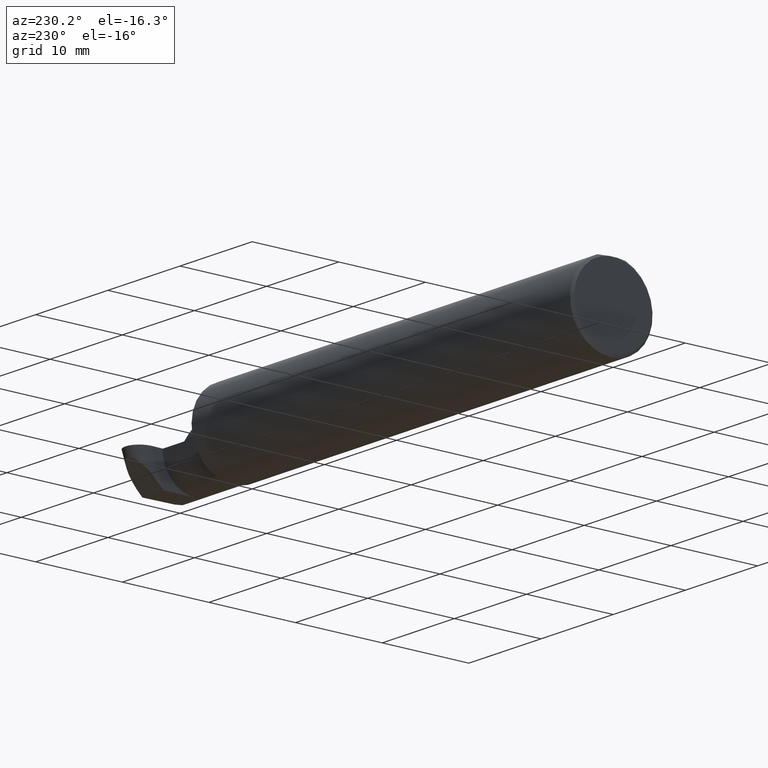
[diagram: clean part render]
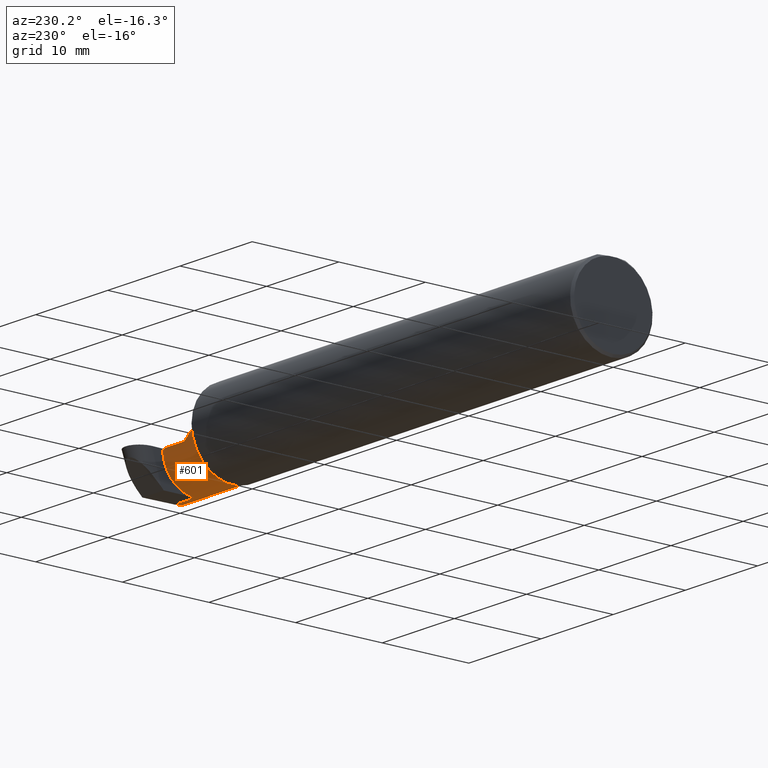
[diagram: same view with one face highlighted and labeled with its STEP entity id]
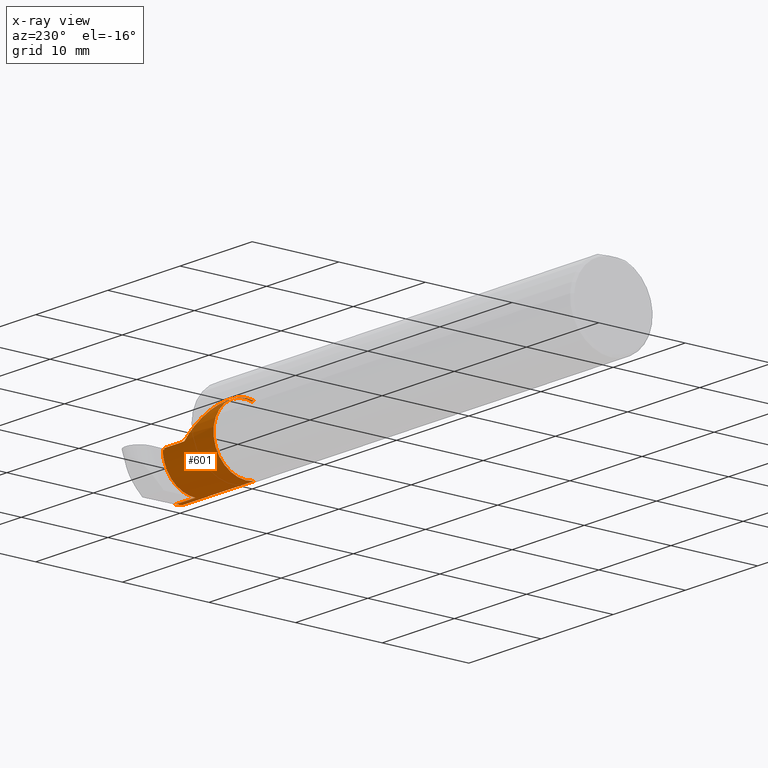
[diagram: x-ray of the same camera — body ghosted, the highlighted face saturated]
A machine part, auxiliary view. The second image highlights one B-rep face of the part: STEP entity #601.
The next image is the same camera in x-ray: the body ghosted, the highlighted face saturated — about 2% of this face is hidden behind the body in this view.
In plain terms, the highlighted cylindrical surface (partial cylindrical patch) has radius 3.81 mm, axis along (-1, -0, -0).
Its self-contained STEP definition (entity closure, byte-faithful):
#1 = CARTESIAN_POINT ( 'NONE',  ( 2.367467983378090057, 0.06661954135095479734, -0.001744974835126142116 ) ) ;
#9 = VECTOR ( 'NONE', #116, 39.37007874015748143 ) ;
#13 = ORIENTED_EDGE ( 'NONE', *, *, #497, .F. ) ;
#14 = CARTESIAN_POINT ( 'NONE',  ( 2.490246926064548560, -0.08334999999999932740, -0.1500000000000000500 ) ) ;
#16 = ORIENTED_EDGE ( 'NONE', *, *, #398, .T. ) ;
#17 = CARTESIAN_POINT ( 'NONE',  ( 2.367407066079999733, 0.06655862405286432082, -0.005234924505378421578 ) ) ;
#40 = ORIENTED_EDGE ( 'NONE', *, *, #358, .F. ) ;
#41 = CARTESIAN_POINT ( 'NONE',  ( 2.100000000000000089, -0.1172600179964002620, -0.1461167706989305870 ) ) ;
#48 = CARTESIAN_POINT ( 'NONE',  ( 2.113883229301068312, -0.1172600179964004702, 0.1461167706989303927 ) ) ;
#58 = VERTEX_POINT ( 'NONE', #548 ) ;
#62 = CARTESIAN_POINT ( 'NONE',  ( 2.237361995000000103, -0.1172600179964005118, 0.1461167706989304482 ) ) ;
#63 = CARTESIAN_POINT ( 'NONE',  ( 2.376713715390371462, 0.06655862405286659678, -0.005234924505376353787 ) ) ;
#79 = CARTESIAN_POINT ( 'NONE',  ( 2.367407066079999733, 0.06655862405286432082, -0.005234924505378421578 ) ) ;
#98 = CARTESIAN_POINT ( 'NONE',  ( 2.490246926064548560, -0.08334999999999932740, -0.1500000000000000500 ) ) ;
#99 = VERTEX_POINT ( 'NONE', #390 ) ;
#102 = AXIS2_PLACEMENT_3D ( 'NONE', #539, #596, #661 ) ;
#108 = DIRECTION ( 'NONE',  ( -1.000000000000000000, -3.417954624266474541E-16, -0.000000000000000000 ) ) ;
#116 = DIRECTION ( 'NONE',  ( -1.000000000000000000, -0.000000000000000000, -0.000000000000000000 ) ) ;
#117 = CARTESIAN_POINT ( 'NONE',  ( 2.379376865616626535, -0.08334999999999999354, -0.1500000000000000500 ) ) ;
#119 = DIRECTION ( 'NONE',  ( 1.000000000000000000, 3.417954624266474541E-16, 0.000000000000000000 ) ) ;
#127 = CARTESIAN_POINT ( 'NONE',  ( 2.260000000000000231, 0.06665000000000001479, 5.204748896376252548E-17 ) ) ;
#138 = CARTESIAN_POINT ( 'NONE',  ( 2.075000000000000622, 0.06655862405286504246, -0.005234924505354759082 ) ) ;
#146 = EDGE_CURVE ( 'NONE', #211, #184, #561, .T. ) ;
#170 = CARTESIAN_POINT ( 'NONE',  ( 2.367498442027135663, 0.06665000000000002867, 0.000000000000000000 ) ) ;
#184 = VERTEX_POINT ( 'NONE', #240 ) ;
#186 = CARTESIAN_POINT ( 'NONE',  ( 2.379376865616626535, -0.08334999999999999354, -0.1500000000000000500 ) ) ;
#203 = CARTESIAN_POINT ( 'NONE',  ( 2.260000000000000231, 0.06665000000000001479, 5.204748896376252548E-17 ) ) ;
#205 = DIRECTION ( 'NONE',  ( -1.000000000000000000, -3.417954624266474541E-16, -0.000000000000000000 ) ) ;
#211 = VERTEX_POINT ( 'NONE', #186 ) ;
#212 = CYLINDRICAL_SURFACE ( 'NONE', #102, 0.1500000000000000777 ) ;
#216 = LINE ( 'NONE', #62, #557 ) ;
#220 = VECTOR ( 'NONE', #513, 39.37007874015748143 ) ;
#238 = VERTEX_POINT ( 'NONE', #79 ) ;
#240 = CARTESIAN_POINT ( 'NONE',  ( 2.376713715390371462, 0.06655862405286659678, -0.005234924505376353787 ) ) ;
#247 = DIRECTION ( 'NONE',  ( -1.000000000000000000, -3.417954624266474541E-16, -0.000000000000000000 ) ) ;
#249 = LINE ( 'NONE', #315, #592 ) ;
#257 = CARTESIAN_POINT ( 'NONE',  ( 2.155331797197863164, 0.06664999999999995928, 0.1046682028021360261 ) ) ;
#262 = CARTESIAN_POINT ( 'NONE',  ( 2.489474166416077328, -0.1061291577212405274, -0.1486999626928447726 ) ) ;
#288 = LINE ( 'NONE', #443, #220 ) ;
#299 = EDGE_CURVE ( 'NONE', #184, #238, #408, .T. ) ;
#311 = CARTESIAN_POINT ( 'NONE',  ( 2.489130585478359858, -0.1172600179964004286, -0.1461167706989304482 ) ) ;
#315 = CARTESIAN_POINT ( 'NONE',  ( 2.237361995000000103, -0.1172600179964005118, -0.1461167706989304482 ) ) ;
#323 = DIRECTION ( 'NONE',  ( 0.000000000000000000, -1.000000000000000000, 0.000000000000000000 ) ) ;
#326 = EDGE_CURVE ( 'NONE', #585, #397, #249, .T. ) ;
#334 = CARTESIAN_POINT ( 'NONE',  ( 2.379349912360630981, 0.002105059811801051999, -0.1500000000000001332 ) ) ;
#341 = FACE_OUTER_BOUND ( 'NONE', #606, .T. ) ;
#358 = EDGE_CURVE ( 'NONE', #585, #600, #504, .T. ) ;
#376 = CARTESIAN_POINT ( 'NONE',  ( 2.100000000000000089, -0.08335000000000007681, 0.000000000000000000 ) ) ;
#389 = CARTESIAN_POINT ( 'NONE',  ( 2.733184360054362383, -0.08334999999999932740, -0.1500000000000000500 ) ) ;
#390 = CARTESIAN_POINT ( 'NONE',  ( 2.113883229301068312, -0.1172600179964004702, 0.1461167706989303927 ) ) ;
#392 = CARTESIAN_POINT ( 'NONE',  ( 2.489130585478359858, -0.1172600179964004286, -0.1461167706989304482 ) ) ;
#397 = VERTEX_POINT ( 'NONE', #41 ) ;
#398 = EDGE_CURVE ( 'NONE', #99, #641, #684, .T. ) ;
#403 = CIRCLE ( 'NONE', #512, 0.1500000000000001332 ) ;
#408 = LINE ( 'NONE', #138, #604 ) ;
#417 = CARTESIAN_POINT ( 'NONE',  ( 2.090221225029925911, -0.01530148607434163137, 0.1697787749700725712 ) ) ;
#427 = ORIENTED_EDGE ( 'NONE', *, *, #326, .T. ) ;
#431 = EDGE_CURVE ( 'NONE', #58, #397, #403, .T. ) ;
#443 = CARTESIAN_POINT ( 'NONE',  ( 2.075000000000000178, 0.06664999999999995928, 5.204748896376252548E-17 ) ) ;
#469 = ORIENTED_EDGE ( 'NONE', *, *, #299, .F. ) ;
#478 = ORIENTED_EDGE ( 'NONE', *, *, #617, .F. ) ;
#479 = CARTESIAN_POINT ( 'NONE',  ( 2.367437524729044895, 0.06658908270190956602, -0.003489949670252284666 ) ) ;
#486 = ORIENTED_EDGE ( 'NONE', *, *, #619, .T. ) ;
#488 = CARTESIAN_POINT ( 'NONE',  ( 2.367498442027135663, 0.06665000000000002867, 0.000000000000000000 ) ) ;
#497 = EDGE_CURVE ( 'NONE', #600, #211, #657, .T. ) ;
#501 = ORIENTED_EDGE ( 'NONE', *, *, #146, .F. ) ;
#504 =( BOUNDED_CURVE ( )  B_SPLINE_CURVE ( 3, ( #311, #262, #576, #98 ),
 .UNSPECIFIED., .F., .F. ) 
 B_SPLINE_CURVE_WITH_KNOTS ( ( 4, 4 ),
 ( 0.8789888184544242256, 1.107026853503871644 ),
 .UNSPECIFIED. ) 
 CURVE ( )  GEOMETRIC_REPRESENTATION_ITEM ( )  RATIONAL_B_SPLINE_CURVE ( ( 1.000000000000000000, 0.9956712472009928705, 0.9956712472009928705, 1.000000000000000000 ) ) 
 REPRESENTATION_ITEM ( '' )  );
#512 = AXIS2_PLACEMENT_3D ( 'NONE', #376, #108, #323 ) ;
#513 = DIRECTION ( 'NONE',  ( 1.000000000000000000, 3.417954624266474541E-16, 0.000000000000000000 ) ) ;
#529 = VERTEX_POINT ( 'NONE', #488 ) ;
#532 = ORIENTED_EDGE ( 'NONE', *, *, #546, .T. ) ;
#539 = CARTESIAN_POINT ( 'NONE',  ( 2.075000000000000178, -0.08335000000000010456, 0.000000000000000000 ) ) ;
#540 = CARTESIAN_POINT ( 'NONE',  ( 2.378257866392183395, 0.06357628547474976355, -0.09063792740365848866 ) ) ;
#546 = EDGE_CURVE ( 'NONE', #58, #99, #216, .T. ) ;
#548 = CARTESIAN_POINT ( 'NONE',  ( 2.100000000000000089, -0.1172600179964003730, 0.1461167706989305592 ) ) ;
#557 = VECTOR ( 'NONE', #119, 39.37007874015748143 ) ;
#561 =( BOUNDED_CURVE ( )  B_SPLINE_CURVE ( 3, ( #117, #334, #540, #63 ),
 .UNSPECIFIED., .F., .F. ) 
 B_SPLINE_CURVE_WITH_KNOTS ( ( 4, 4 ),
 ( 3.159045946109717562, 4.694935687864719931 ),
 .UNSPECIFIED. ) 
 CURVE ( )  GEOMETRIC_REPRESENTATION_ITEM ( )  RATIONAL_B_SPLINE_CURVE ( ( 1.000000000000000000, 0.8128932002257691636, 0.8128932002257691636, 1.000000000000000000 ) ) 
 REPRESENTATION_ITEM ( '' )  );
#576 = CARTESIAN_POINT ( 'NONE',  ( 2.489847897735300908, -0.09477667630339363380, -0.1500000000000001332 ) ) ;
#585 = VERTEX_POINT ( 'NONE', #392 ) ;
#592 = VECTOR ( 'NONE', #205, 39.37007874015748143 ) ;
#596 = DIRECTION ( 'NONE',  ( -1.000000000000000000, -3.417954624266474541E-16, -0.000000000000000000 ) ) ;
#600 = VERTEX_POINT ( 'NONE', #14 ) ;
#601 = ADVANCED_FACE ( 'NONE', ( #341 ), #212, .T. ) ;
#604 = VECTOR ( 'NONE', #247, 39.37007874015748143 ) ;
#606 = EDGE_LOOP ( 'NONE', ( #427, #668, #532, #16, #486, #478, #469, #501, #13, #40 ) ) ;
#607 = B_SPLINE_CURVE_WITH_KNOTS ( 'NONE', 3,
 ( #17, #479, #1, #170 ),
 .UNSPECIFIED., .F., .F.,
 ( 4, 4 ),
 ( 0.000000000000000000, 1.000000000000000000 ),
 .UNSPECIFIED. ) ;
#617 = EDGE_CURVE ( 'NONE', #238, #529, #607, .T. ) ;
#619 = EDGE_CURVE ( 'NONE', #641, #529, #288, .T. ) ;
#641 = VERTEX_POINT ( 'NONE', #127 ) ;
#657 = LINE ( 'NONE', #389, #9 ) ;
#661 = DIRECTION ( 'NONE',  ( 0.000000000000000000, -1.000000000000000000, 0.000000000000000000 ) ) ;
#668 = ORIENTED_EDGE ( 'NONE', *, *, #431, .F. ) ;
#684 =( BOUNDED_CURVE ( )  B_SPLINE_CURVE ( 3, ( #48, #417, #257, #203 ),
 .UNSPECIFIED., .F., .F. ) 
 B_SPLINE_CURVE_WITH_KNOTS ( ( 4, 4 ),
 ( 6.055147272130144032, 7.853981633974482790 ),
 .UNSPECIFIED. ) 
 CURVE ( )  GEOMETRIC_REPRESENTATION_ITEM ( )  RATIONAL_B_SPLINE_CURVE ( ( 1.000000000000000000, 0.7480442670255272875, 0.7480442670255272875, 1.000000000000000000 ) ) 
 REPRESENTATION_ITEM ( '' )  );